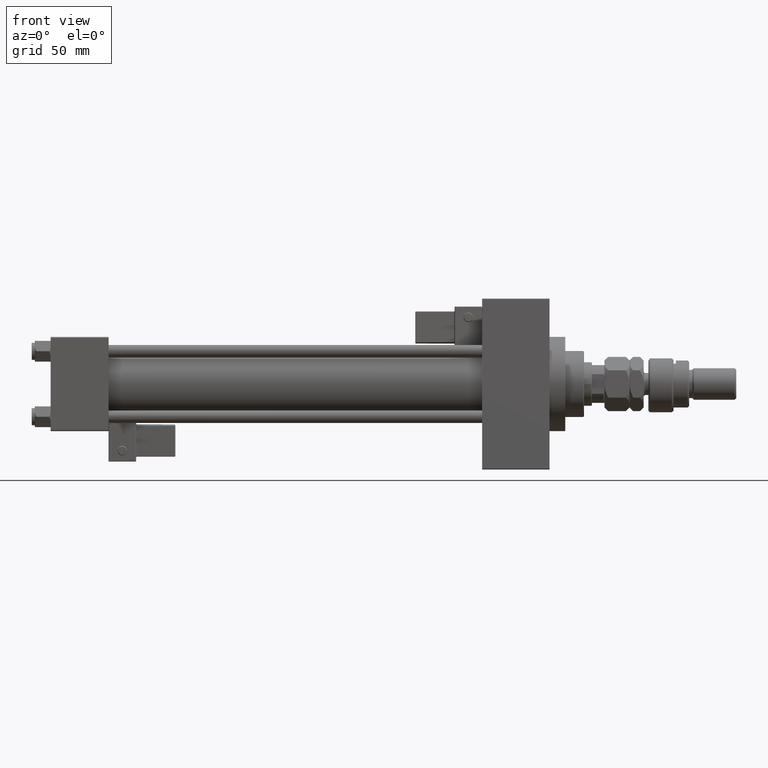
[diagram: clean part render]
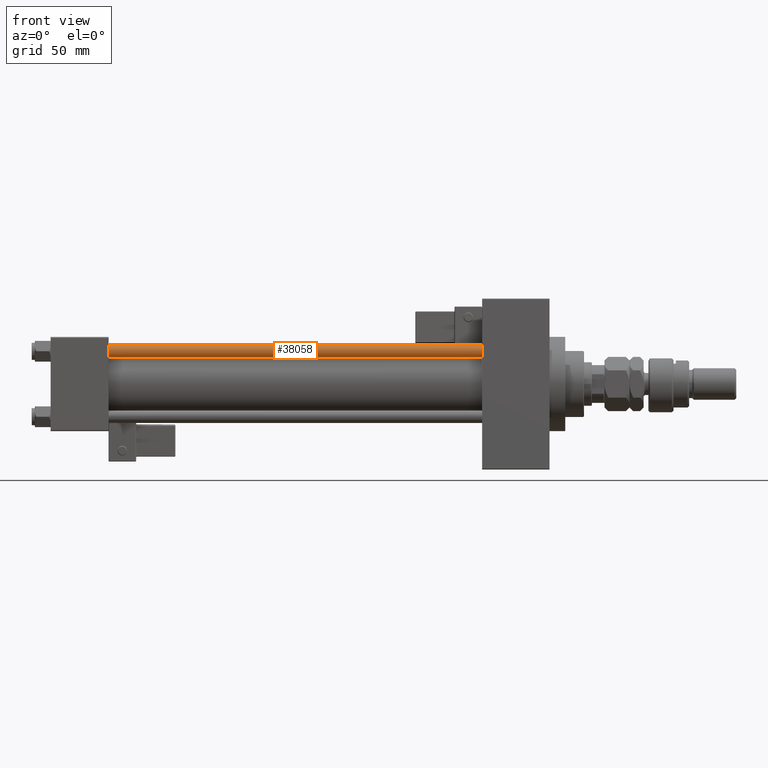
[diagram: same view with one face highlighted and labeled with its STEP entity id]
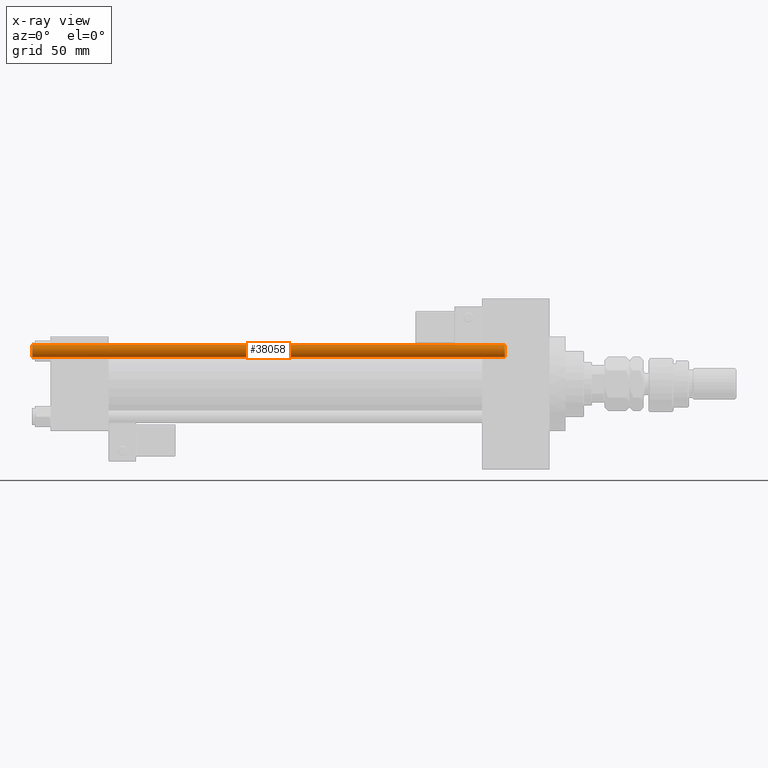
[diagram: x-ray of the same camera — body ghosted, the highlighted face saturated]
A machine part, front view. The second image highlights one B-rep face of the part: STEP entity #38058.
The next image is the same camera in x-ray: the body ghosted, the highlighted face saturated — about 0% of this face is hidden behind the body in this view.
In plain terms, the highlighted cylindrical surface (edge-blend (fillet) strip) has radius 4 mm, axis along (1, 0, 0).
Its self-contained STEP definition (entity closure, byte-faithful):
#2808 = EDGE_CURVE ( 'NONE', #15546, #3653, #20802, .T. ) ;
#3653 = VERTEX_POINT ( 'NONE', #37544 ) ;
#7051 = DIRECTION ( 'NONE',  ( -0.000000000000000000, -0.000000000000000000, -1.000000000000000000 ) ) ;
#7859 = VECTOR ( 'NONE', #17078, 1000.000000000000000 ) ;
#10285 = FACE_OUTER_BOUND ( 'NONE', #39463, .T. ) ;
#11042 = LINE ( 'NONE', #34965, #44372 ) ;
#15546 = VERTEX_POINT ( 'NONE', #31055 ) ;
#17078 = DIRECTION ( 'NONE',  ( -0.000000000000000000, -0.000000000000000000, -1.000000000000000000 ) ) ;
#19821 = EDGE_CURVE ( 'NONE', #35783, #15546, #32416, .T. ) ;
#20802 = LINE ( 'NONE', #25322, #7859 ) ;
#20820 = EDGE_CURVE ( 'NONE', #35783, #50579, #11042, .T. ) ;
#21856 = ORIENTED_EDGE ( 'NONE', *, *, #2808, .T. ) ;
#23070 = AXIS2_PLACEMENT_3D ( 'NONE', #37913, #24901, #29668 ) ;
#23532 = CARTESIAN_POINT ( 'NONE',  ( 0.000000000000000000, 0.000000000000000000, 0.5000000000000559552 ) ) ;
#24901 = DIRECTION ( 'NONE',  ( 0.000000000000000000, 0.000000000000000000, -1.000000000000000000 ) ) ;
#25322 = CARTESIAN_POINT ( 'NONE',  ( 4.000000000000000000, 4.898587196589412829E-16, 302.0000000000000000 ) ) ;
#25980 = CARTESIAN_POINT ( 'NONE',  ( -4.000000000000000000, 0.000000000000000000, 301.4999999999999432 ) ) ;
#29668 = DIRECTION ( 'NONE',  ( 1.000000000000000000, 0.000000000000000000, 0.000000000000000000 ) ) ;
#29708 = CARTESIAN_POINT ( 'NONE',  ( 0.000000000000000000, 0.000000000000000000, 302.0000000000000000 ) ) ;
#31055 = CARTESIAN_POINT ( 'NONE',  ( 4.000000000000000000, 4.898587196589412829E-16, 301.4999999999999432 ) ) ;
#31917 = AXIS2_PLACEMENT_3D ( 'NONE', #23532, #38693, #39472 ) ;
#32416 = CIRCLE ( 'NONE', #23070, 4.000000000000000000 ) ;
#32759 = CIRCLE ( 'NONE', #31917, 4.000000000000000000 ) ;
#33960 = DIRECTION ( 'NONE',  ( -0.000000000000000000, -0.000000000000000000, -1.000000000000000000 ) ) ;
#34472 = ORIENTED_EDGE ( 'NONE', *, *, #45149, .T. ) ;
#34965 = CARTESIAN_POINT ( 'NONE',  ( -4.000000000000000000, 0.000000000000000000, 302.0000000000000000 ) ) ;
#35014 = CARTESIAN_POINT ( 'NONE',  ( -4.000000000000000000, 0.000000000000000000, 0.5000000000000559552 ) ) ;
#35783 = VERTEX_POINT ( 'NONE', #25980 ) ;
#37544 = CARTESIAN_POINT ( 'NONE',  ( 4.000000000000000000, 4.898587196589412829E-16, 0.5000000000000559552 ) ) ;
#37913 = CARTESIAN_POINT ( 'NONE',  ( 0.000000000000000000, 0.000000000000000000, 301.4999999999999432 ) ) ;
#38058 = ADVANCED_FACE ( 'NONE', ( #10285 ), #50436, .T. ) ;
#38693 = DIRECTION ( 'NONE',  ( -0.000000000000000000, -0.000000000000000000, 1.000000000000000000 ) ) ;
#39463 = EDGE_LOOP ( 'NONE', ( #47832, #21856, #34472, #47960 ) ) ;
#39472 = DIRECTION ( 'NONE',  ( 1.000000000000000000, 0.000000000000000000, 0.000000000000000000 ) ) ;
#44372 = VECTOR ( 'NONE', #7051, 1000.000000000000000 ) ;
#45149 = EDGE_CURVE ( 'NONE', #3653, #50579, #32759, .T. ) ;
#47832 = ORIENTED_EDGE ( 'NONE', *, *, #19821, .T. ) ;
#47960 = ORIENTED_EDGE ( 'NONE', *, *, #20820, .F. ) ;
#49647 = DIRECTION ( 'NONE',  ( -1.000000000000000000, 0.000000000000000000, 0.000000000000000000 ) ) ;
#50436 = CYLINDRICAL_SURFACE ( 'NONE', #50881, 4.000000000000000000 ) ;
#50579 = VERTEX_POINT ( 'NONE', #35014 ) ;
#50881 = AXIS2_PLACEMENT_3D ( 'NONE', #29708, #33960, #49647 ) ;